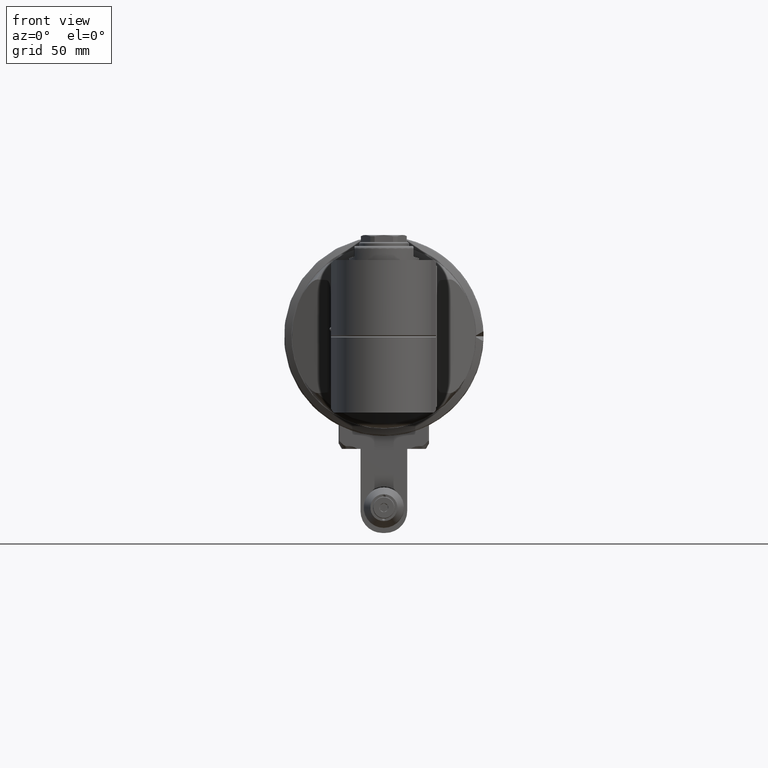
[diagram: clean part render]
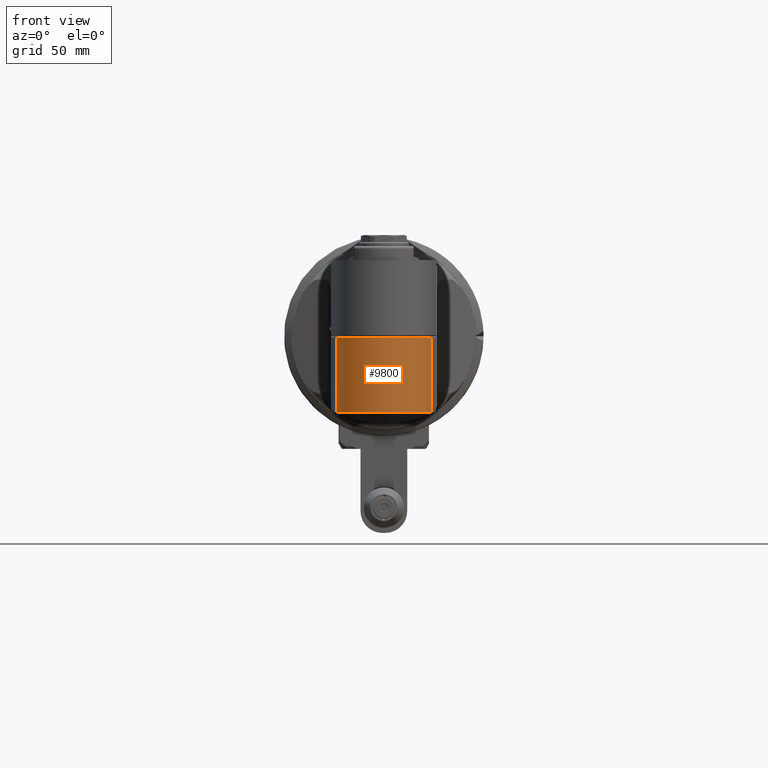
[diagram: same view with one face highlighted and labeled with its STEP entity id]
A machine part, front view. The second image highlights one B-rep face of the part: STEP entity #9800.
In plain terms, the highlighted cylindrical surface (partial cylindrical patch) has radius 31 mm, axis along (-0, 0, -1).
Its self-contained STEP definition (entity closure, byte-faithful):
#429=CYLINDRICAL_SURFACE('',#10805,31.);
#968=CIRCLE('',#10790,31.);
#971=CIRCLE('',#10797,31.);
#1546=FACE_OUTER_BOUND('',#2183,.T.);
#2183=EDGE_LOOP('',(#8368,#8369,#8370,#8371));
#3044=LINE('',#31276,#3657);
#3046=LINE('',#31334,#3659);
#3657=VECTOR('',#13130,48.33431457505);
#3659=VECTOR('',#13140,48.33431457505);
#4540=VERTEX_POINT('',#31272);
#4541=VERTEX_POINT('',#31274);
#4542=VERTEX_POINT('',#31278);
#4555=VERTEX_POINT('',#31333);
#5852=EDGE_CURVE('',#4540,#4541,#3044,.T.);
#5863=EDGE_CURVE('',#4540,#4542,#968,.T.);
#5868=EDGE_CURVE('',#4555,#4542,#3046,.T.);
#5873=EDGE_CURVE('',#4555,#4541,#971,.T.);
#8368=ORIENTED_EDGE('',*,*,#5873,.F.);
#8369=ORIENTED_EDGE('',*,*,#5868,.T.);
#8370=ORIENTED_EDGE('',*,*,#5863,.F.);
#8371=ORIENTED_EDGE('',*,*,#5852,.T.);
#9800=ADVANCED_FACE('',(#1546),#429,.T.);
#10790=AXIS2_PLACEMENT_3D('',#31316,#13134,#13135);
#10797=AXIS2_PLACEMENT_3D('',#31343,#13152,#13153);
#10805=AXIS2_PLACEMENT_3D('',#31356,#13172,#13173);
#13130=DIRECTION('',(1.411256231369E-13,-1.,-3.895655222007E-14));
#13134=DIRECTION('center_axis',(0.,1.,0.));
#13135=DIRECTION('ref_axis',(0.207911690817089,0.,0.978147600733948));
#13140=DIRECTION('',(-1.387735294179E-13,1.,-3.807451707547E-14));
#13152=DIRECTION('center_axis',(0.,-1.,0.));
#13153=DIRECTION('ref_axis',(0.207911690817799,0.,-0.978147600733797));
#13172=DIRECTION('center_axis',(0.,1.,0.));
#13173=DIRECTION('ref_axis',(1.,0.,0.));
#31272=CARTESIAN_POINT('',(284.5083594153,49.,30.32257562275));
#31274=CARTESIAN_POINT('',(284.5083594154,0.6656854249496,30.32257562275));
#31276=CARTESIAN_POINT('',(284.5083594153,49.,30.32257562275));
#31278=CARTESIAN_POINT('',(284.5083594153,49.,-30.32257562275));
#31316=CARTESIAN_POINT('Origin',(278.063097,49.,0.));
#31333=CARTESIAN_POINT('',(284.5083594154,0.6656854249495,-30.32257562275));
#31334=CARTESIAN_POINT('',(284.5083594154,0.6656854249495,-30.32257562275));
#31343=CARTESIAN_POINT('Origin',(278.063097,0.6656854249493,0.));
#31356=CARTESIAN_POINT('Origin',(278.063097,49.,0.));